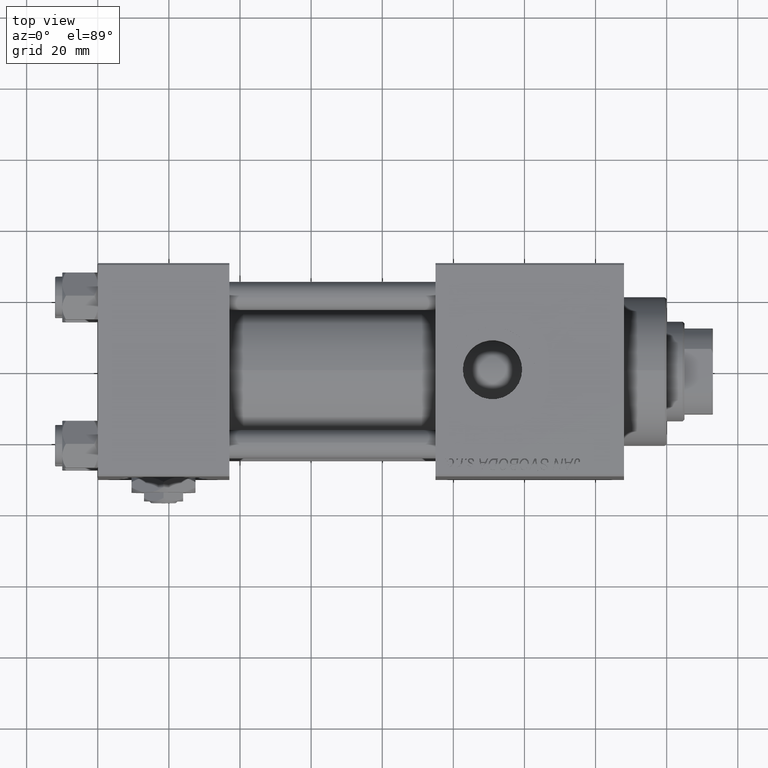
[diagram: clean part render]
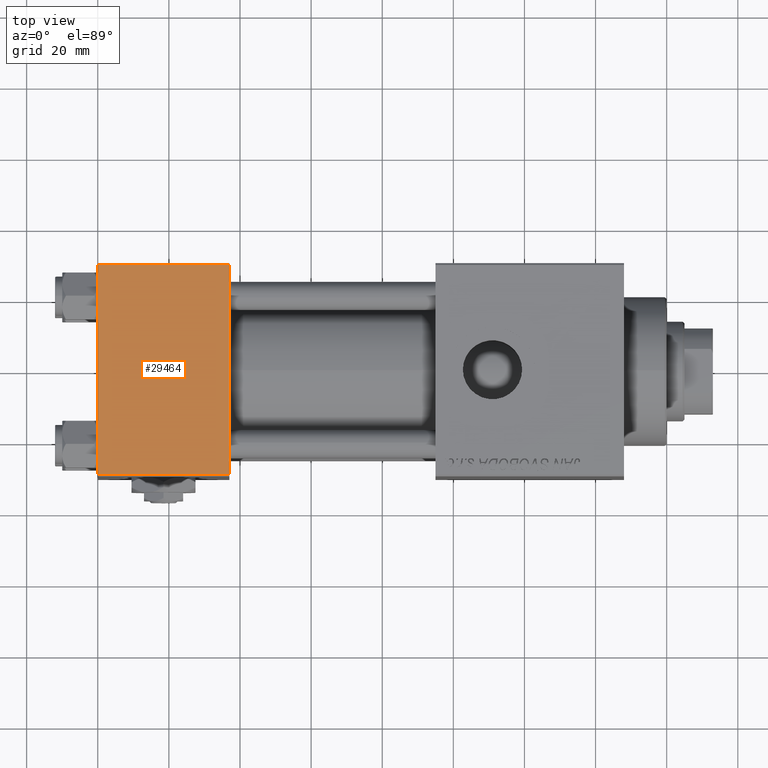
[diagram: same view with one face highlighted and labeled with its STEP entity id]
A machine part, top view. The second image highlights one B-rep face of the part: STEP entity #29464.
In plain terms, the highlighted planar face has unit normal (0, 0, -1).
Its self-contained STEP definition (entity closure, byte-faithful):
#1370 = VECTOR ( 'NONE', #7727, 1000.000000000000000 ) ;
#3097 = ORIENTED_EDGE ( 'NONE', *, *, #5963, .T. ) ;
#4533 = CARTESIAN_POINT ( 'NONE',  ( 0.000000000000000000, 29.99999999999999289, 30.00000000000000000 ) ) ;
#5352 = EDGE_CURVE ( 'NONE', #8717, #31739, #43691, .T. ) ;
#5963 = EDGE_CURVE ( 'NONE', #48613, #43022, #18488, .T. ) ;
#6579 = DIRECTION ( 'NONE',  ( 0.000000000000000000, -1.000000000000000000, -1.156482317317871725E-16 ) ) ;
#7727 = DIRECTION ( 'NONE',  ( -1.000000000000000000, 0.000000000000000000, 0.000000000000000000 ) ) ;
#8717 = VERTEX_POINT ( 'NONE', #35252 ) ;
#9106 = ORIENTED_EDGE ( 'NONE', *, *, #29847, .F. ) ;
#9788 = EDGE_LOOP ( 'NONE', ( #41632, #3097, #9106, #30388 ) ) ;
#10126 = CARTESIAN_POINT ( 'NONE',  ( 37.00000000000000000, -29.49999999999998579, 29.99999999999999289 ) ) ;
#10624 = DIRECTION ( 'NONE',  ( 1.000000000000000000, 0.000000000000000000, 0.000000000000000000 ) ) ;
#12664 = DIRECTION ( 'NONE',  ( 0.000000000000000000, -1.000000000000000000, -1.156482317317871725E-16 ) ) ;
#13806 = CARTESIAN_POINT ( 'NONE',  ( 37.00000000000000000, -29.50000000000000000, 29.99999999999999289 ) ) ;
#16626 = EDGE_CURVE ( 'NONE', #31739, #48613, #20792, .T. ) ;
#18488 = LINE ( 'NONE', #13806, #36575 ) ;
#20792 = LINE ( 'NONE', #4533, #46047 ) ;
#26518 = LINE ( 'NONE', #42539, #38952 ) ;
#28031 = AXIS2_PLACEMENT_3D ( 'NONE', #30531, #34463, #51538 ) ;
#29464 = ADVANCED_FACE ( 'NONE', ( #35499 ), #31302, .F. ) ;
#29847 = EDGE_CURVE ( 'NONE', #8717, #43022, #26518, .T. ) ;
#30388 = ORIENTED_EDGE ( 'NONE', *, *, #5352, .T. ) ;
#30531 = CARTESIAN_POINT ( 'NONE',  ( 37.00000000000000000, 29.99999999999999289, 30.00000000000000000 ) ) ;
#31302 = PLANE ( 'NONE',  #28031 ) ;
#31739 = VERTEX_POINT ( 'NONE', #35009 ) ;
#34463 = DIRECTION ( 'NONE',  ( 0.000000000000000000, 1.156482317317871725E-16, -1.000000000000000000 ) ) ;
#35009 = CARTESIAN_POINT ( 'NONE',  ( 0.000000000000000000, 29.49999999999999289, 30.00000000000000000 ) ) ;
#35252 = CARTESIAN_POINT ( 'NONE',  ( 37.00000000000000000, 29.49999999999999289, 30.00000000000000000 ) ) ;
#35499 = FACE_OUTER_BOUND ( 'NONE', #9788, .T. ) ;
#36575 = VECTOR ( 'NONE', #10624, 1000.000000000000000 ) ;
#38952 = VECTOR ( 'NONE', #6579, 1000.000000000000000 ) ;
#41632 = ORIENTED_EDGE ( 'NONE', *, *, #16626, .T. ) ;
#42539 = CARTESIAN_POINT ( 'NONE',  ( 37.00000000000000000, 29.99999999999999289, 30.00000000000000000 ) ) ;
#43022 = VERTEX_POINT ( 'NONE', #10126 ) ;
#43691 = LINE ( 'NONE', #44209, #1370 ) ;
#44209 = CARTESIAN_POINT ( 'NONE',  ( 0.000000000000000000, 29.49999999999999289, 30.00000000000000000 ) ) ;
#46047 = VECTOR ( 'NONE', #12664, 1000.000000000000000 ) ;
#48613 = VERTEX_POINT ( 'NONE', #51826 ) ;
#51538 = DIRECTION ( 'NONE',  ( 0.000000000000000000, 1.000000000000000000, 1.156482317317871725E-16 ) ) ;
#51826 = CARTESIAN_POINT ( 'NONE',  ( 0.000000000000000000, -29.49999999999998579, 29.99999999999999289 ) ) ;